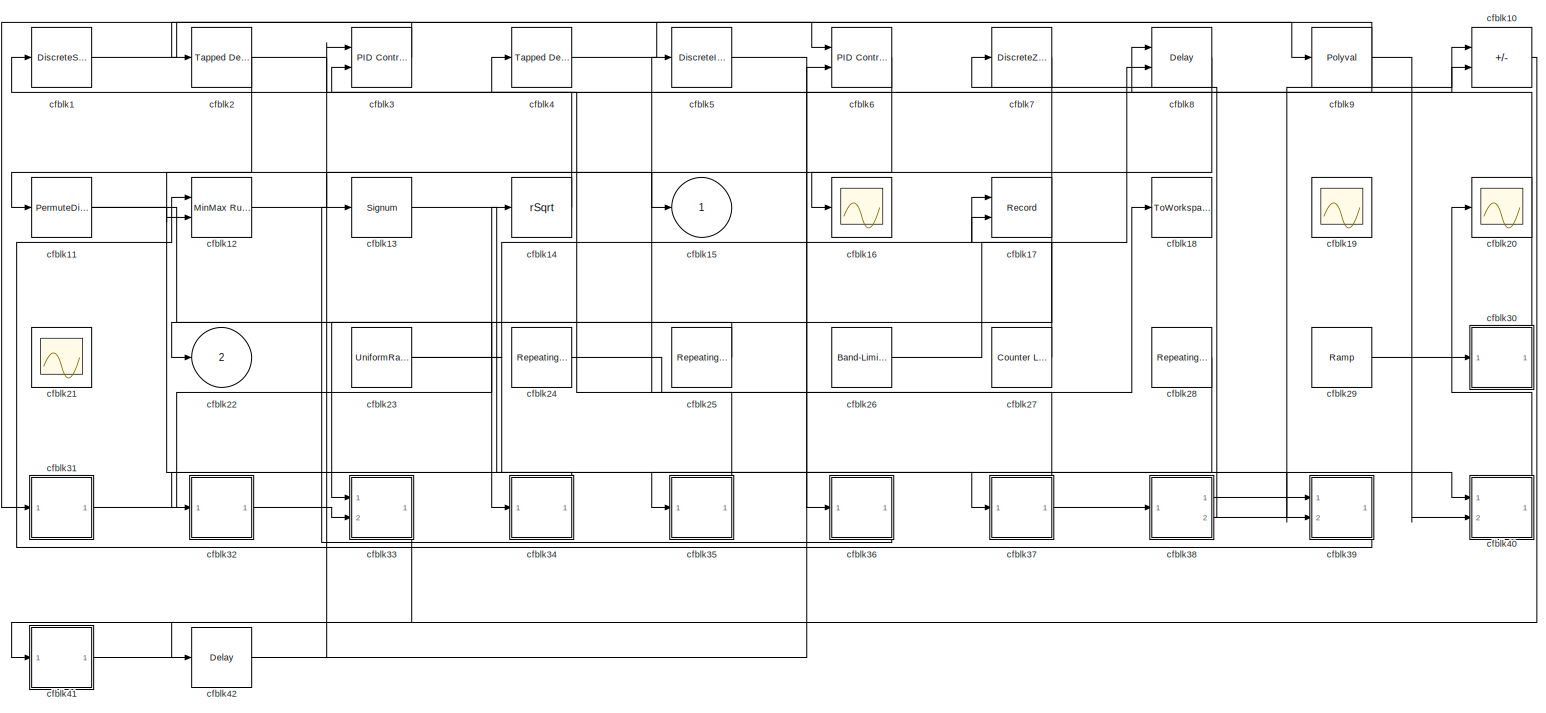
[diagram: root canvas - part 1/1, most of the canvas]
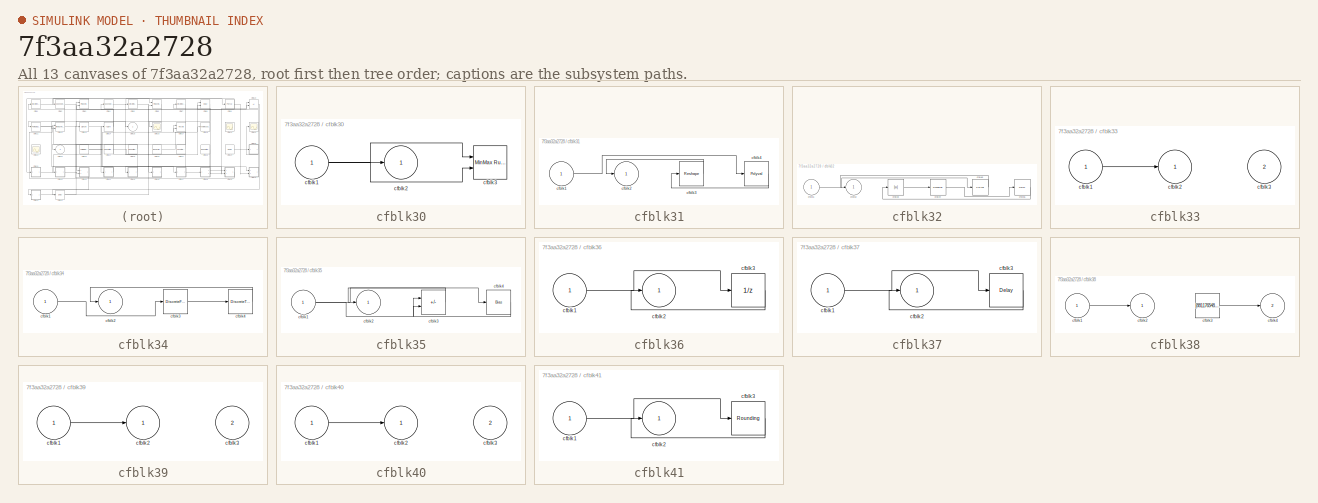
[diagram: thumbnail index - all 13 canvases of the model, root first then tree order]
MODEL slx_7f3aa32a2728
KIND model
CONFIG AbsTol = auto
CONFIG EnableMultiTasking = off
CONFIG FixedStep = auto
CONFIG MaxStep = auto
CONFIG MinStep = auto
CONFIG RelTol = 1e-3
CONFIG SampleTimeConstraint = Unconstrained
CONFIG SolverName = VariableStepAuto
CONFIG StartTime = 0.0
CONFIG StopTime = 10.0
BLOCK [DiscreteStateSpace] cfblk1
BLOCK [Sum] cfblk10
  IconShape = rectangular
  Inputs = +-
  Ports = [2, 1]
BLOCK [PermuteDimensions] cfblk11
BLOCK [Reference] cfblk12  REF=simulink/Math
Operations/MinMax
Running
Resettable
  Ports = [2, 1]
  SourceBlock = simulink/Math\nOperations/MinMax\nRunning\nResettable
  SourceProductBaseCode = SL
  SourceType = MinMax Running Resettable
BLOCK [Signum] cfblk13
BLOCK [Sqrt] cfblk14
  AlgorithmType = Newton-Raphson
  Operator = rSqrt
BLOCK [Outport] cfblk15
BLOCK [Scope] cfblk16
  Floating = off
  NumInputPorts = 1
  Ports = [1]
BLOCK [Record] cfblk17
  CompatibilityTag = XY
  FileSettingsInternal = {"entries":[{"content":{"excelSettings":{"content":{},"type":"Streamout.ExcelSettings"}},"type":"Streamout.FileSettingStorage","uuid":"6c478cfb-f08e-41cb-a2e0-bee08701c334"}],"packageUris":["http://schema.mathworks.com/mf0/streamout_blocks/R2020a"],"version":"1.0"}
  Layout = [1 1]
  Ports = [2]
  SignalsInternal = {"entries":[{"content":{"signals":[{"content":{"blockPath":["sampleModel129/cfblk17"],"channel":[],"dimensions":[1],"domain":"sampleModel129/cfblk17","lineColor":"#a2142f","plots":[1],"port":1,"sid":[""],"signalID":4517,"signalName":"cfblk27"},"type":"RecordBlkView.Signal","uuid":"d0227166-e5b9-4346-82fd-59314eee75df"},{"content":{"blockPath":["sampleModel129/cfblk17"],"channel":[],"dimensions":[1...<+383ch>
  VisualizationBindings = {"xyplotplugin":{"info":[{"series":[{"bindingParametersList":[{"parameter":"X-Axis","signalID":4517,"signalName":"cfblk27"},{"parameter":"Y-Axis","signalID":4521,"signalName":"cfblk23"}],"seriesID":1265}],"subplotID":1}]}}
BLOCK [ToWorkspace] cfblk18
  FixptAsFi = on
  MaxDataPoints = inf
  Ports = [1]
  SampleTime = -1
  SaveFormat = Timeseries
  VariableName = ebqmpxw
BLOCK [Scope] cfblk19
  Floating = on
  NumInputPorts = 1
  Ports = []
BLOCK [Reference] cfblk2  REF=simulink/Discrete/Tapped Delay
  Ports = [1, 1]
  SourceBlock = simulink/Discrete/Tapped Delay
  SourceProductBaseCode = SL
  SourceType = Tapped Delay Line
BLOCK [Scope] cfblk20
  Floating = off
  NumInputPorts = 1
  Ports = [1]
BLOCK [Scope] cfblk21
  Floating = on
  NumInputPorts = 1
  Ports = []
BLOCK [Outport] cfblk22
  Port = 2
BLOCK [UniformRandomNumber] cfblk23
  Maximum = [4014070307.860305]
  Minimum = [-751023809.091208]
  SampleTime = 0.1
  Seed = [9808600.000000]
BLOCK [Reference] cfblk24  REF=simulink/Sources/Repeating
Sequence
Interpolated
  Ports = [0, 1]
  SourceBlock = simulink/Sources/Repeating\nSequence\nInterpolated
  SourceProductBaseCode = SL
  SourceType = Repeating Sequence Interpolated
BLOCK [Reference] cfblk25  REF=simulink/Sources/Repeating
Sequence
Interpolated
  Ports = [0, 1]
  SourceBlock = simulink/Sources/Repeating\nSequence\nInterpolated
  SourceProductBaseCode = SL
  SourceType = Repeating Sequence Interpolated
BLOCK [Reference] cfblk26  REF=simulink/Sources/Band-Limited
White Noise
  Ports = [0, 1]
  SourceBlock = simulink/Sources/Band-Limited\nWhite Noise
  SourceProductBaseCode = SL
  SourceType = Band-Limited White Noise.
BLOCK [Reference] cfblk27  REF=simulink/Sources/Counter
Limited
  Ports = [0, 1]
  SourceBlock = simulink/Sources/Counter\nLimited
  SourceProductBaseCode = SL
  SourceType = Counter Limited
BLOCK [Reference] cfblk28  REF=simulink/Sources/Repeating
Sequence
Interpolated
  Ports = [0, 1]
  SourceBlock = simulink/Sources/Repeating\nSequence\nInterpolated
  SourceProductBaseCode = SL
  SourceType = Repeating Sequence Interpolated
BLOCK [Reference] cfblk29  REF=simulink/Sources/Ramp
  Ports = [0, 1]
  SourceBlock = simulink/Sources/Ramp
  SourceProductBaseCode = SL
  SourceType = Ramp
BLOCK [Reference] cfblk3  REF=slpidlib/PID Controller (2DOF)
  Ports = [2, 1]
  SourceBlock = slpidlib/PID Controller (2DOF)
  SourceProductBaseCode = SL
  SourceType = PID 2dof
BLOCK [SubSystem] cfblk30
  Ports = [1, 1]
  RequestExecContextInheritance = off
BLOCK [Inport] cfblk30/cfblk1
BLOCK [Outport] cfblk30/cfblk2
BLOCK [Reference] cfblk30/cfblk3  REF=simulink/Math
Operations/MinMax
Running
Resettable
  Ports = [2, 1]
  SourceBlock = simulink/Math\nOperations/MinMax\nRunning\nResettable
  SourceProductBaseCode = SL
  SourceType = MinMax Running Resettable
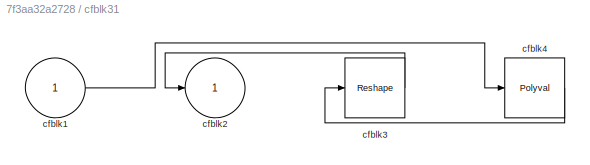
BLOCK [SubSystem] cfblk31
  Ports = [1, 1]
  RequestExecContextInheritance = off
BLOCK [Inport] cfblk31/cfblk1
BLOCK [Outport] cfblk31/cfblk2
BLOCK [Reshape] cfblk31/cfblk3
  Ports = [1, 1]
BLOCK [Polyval] cfblk31/cfblk4
  Coefs = [ +2.081618890e-019, -1.441693666e-014, +4.719686976e-010, -8.536869453e-006, +1.621573104e-001, -8.087801117e+001 ]
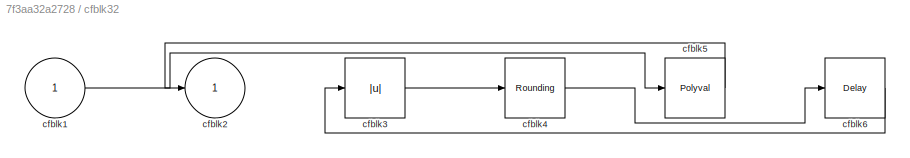
BLOCK [SubSystem] cfblk32
  Ports = [1, 1]
  RequestExecContextInheritance = off
BLOCK [Inport] cfblk32/cfblk1
BLOCK [Outport] cfblk32/cfblk2
BLOCK [Abs] cfblk32/cfblk3
  SaturateOnIntegerOverflow = off
BLOCK [Rounding] cfblk32/cfblk4
BLOCK [Polyval] cfblk32/cfblk5
  Coefs = [ +2.081618890e-019, -1.441693666e-014, +4.719686976e-010, -8.536869453e-006, +1.621573104e-001, -8.087801117e+001 ]
BLOCK [Delay] cfblk32/cfblk6
  InputPortMap = u0
  Ports = [1, 1]
  SampleTime = 1
BLOCK [SubSystem] cfblk33
  Ports = [2, 1]
  RequestExecContextInheritance = off
BLOCK [Inport] cfblk33/cfblk1
BLOCK [Outport] cfblk33/cfblk2
BLOCK [Inport] cfblk33/cfblk3
  Port = 2
BLOCK [SubSystem] cfblk34
  Ports = [1, 1]
  RequestExecContextInheritance = off
BLOCK [Inport] cfblk34/cfblk1
BLOCK [Outport] cfblk34/cfblk2
BLOCK [DiscreteFilter] cfblk34/cfblk3
  InputPortMap = u0
  Ports = [1, 1]
  SampleTime = 1
BLOCK [DiscreteTransferFcn] cfblk34/cfblk4
  InputPortMap = u0
  Ports = [1, 1]
  SampleTime = 1
BLOCK [SubSystem] cfblk35
  Ports = [1, 1]
  RequestExecContextInheritance = off
BLOCK [Inport] cfblk35/cfblk1
BLOCK [Outport] cfblk35/cfblk2
BLOCK [Sum] cfblk35/cfblk3
  IconShape = rectangular
  Inputs = +-
  Ports = [2, 1]
BLOCK [Bias] cfblk35/cfblk4
  Bias = [616990599.624124]
  SaturateOnIntegerOverflow = off
BLOCK [SubSystem] cfblk36
  Ports = [1, 1]
  RequestExecContextInheritance = off
BLOCK [Inport] cfblk36/cfblk1
BLOCK [Outport] cfblk36/cfblk2
BLOCK [UnitDelay] cfblk36/cfblk3
  HasFrameUpgradeWarning = on
BLOCK [SubSystem] cfblk37
  Ports = [1, 1]
  RequestExecContextInheritance = off
BLOCK [Inport] cfblk37/cfblk1
BLOCK [Outport] cfblk37/cfblk2
BLOCK [Delay] cfblk37/cfblk3
  InputPortMap = u0
  Ports = [1, 1]
  SampleTime = 1
BLOCK [SubSystem] cfblk38
  Ports = [1, 2]
  RequestExecContextInheritance = off
BLOCK [Inport] cfblk38/cfblk1
BLOCK [Outport] cfblk38/cfblk2
BLOCK [Constant] cfblk38/cfblk3
  SampleTime = 1
  Value = [881176548.767692]
BLOCK [Outport] cfblk38/cfblk4
  Port = 2
BLOCK [SubSystem] cfblk39
  Ports = [2, 1]
  RequestExecContextInheritance = off
BLOCK [Inport] cfblk39/cfblk1
BLOCK [Outport] cfblk39/cfblk2
BLOCK [Inport] cfblk39/cfblk3
  Port = 2
BLOCK [Reference] cfblk4  REF=simulink/Discrete/Tapped Delay
  Ports = [1, 1]
  SourceBlock = simulink/Discrete/Tapped Delay
  SourceProductBaseCode = SL
  SourceType = Tapped Delay Line
BLOCK [SubSystem] cfblk40
  Ports = [2, 1]
  RequestExecContextInheritance = off
BLOCK [Inport] cfblk40/cfblk1
BLOCK [Outport] cfblk40/cfblk2
BLOCK [Inport] cfblk40/cfblk3
  Port = 2
BLOCK [SubSystem] cfblk41
  Ports = [1, 1]
  RequestExecContextInheritance = off
BLOCK [Inport] cfblk41/cfblk1
BLOCK [Outport] cfblk41/cfblk2
BLOCK [Rounding] cfblk41/cfblk3
BLOCK [Delay] cfblk42
  InputPortMap = u0
  Ports = [1, 1]
  SampleTime = 1
BLOCK [DiscreteIntegrator] cfblk5
  ICPrevOutput = DiscIntNeverNeededParam
  ICPrevScaledInput = DiscIntNeverNeededParam
  InitialConditionSetting = Auto
  Ports = [1, 1]
BLOCK [Reference] cfblk6  REF=slpidlib/PID Controller (2DOF)
  Ports = [2, 1]
  SourceBlock = slpidlib/PID Controller (2DOF)
  SourceProductBaseCode = SL
  SourceType = PID 2dof
BLOCK [DiscreteZeroPole] cfblk7
  Gain = 1
  Poles = [0 0.5]
BLOCK [Delay] cfblk8
  DelayLengthSource = Input port
  InputPortMap = u0,p1
  Ports = [2, 1]
  SampleTime = 1
BLOCK [Polyval] cfblk9
  Coefs = [ +2.081618890e-019, -1.441693666e-014, +4.719686976e-010, -8.536869453e-006, +1.621573104e-001, -8.087801117e+001 ]
LINE cfblk10:1 -> cfblk41:1
NET cfblk11:1 -> cfblk34:1, cfblk40:1
LINE cfblk12:1 -> cfblk15:1
LINE cfblk13:1 -> cfblk37:1
LINE cfblk14:1 -> cfblk1:1
LINE cfblk1:1 -> cfblk6:1
NET cfblk23:1 -> cfblk17:2, cfblk39:2
LINE cfblk24:1 -> cfblk18:1
LINE cfblk25:1 -> cfblk22:1
LINE cfblk26:1 -> cfblk8:2
LINE cfblk27:1 -> cfblk17:1
LINE cfblk28:1 -> cfblk35:1
LINE cfblk29:1 -> cfblk30:1
NET cfblk2:1 -> cfblk10:2, cfblk12:2
NET cfblk30/cfblk1:1 -> cfblk30/cfblk2:1, cfblk30/cfblk3:1, cfblk30/cfblk3:2
LINE cfblk30:1 -> cfblk8:1
LINE cfblk31/cfblk1:1 -> cfblk31/cfblk4:1
LINE cfblk31/cfblk3:1 -> cfblk31/cfblk2:1
LINE cfblk31/cfblk4:1 -> cfblk31/cfblk3:1
LINE cfblk31:1 -> cfblk14:1
LINE cfblk32/cfblk1:1 -> cfblk32/cfblk5:1
LINE cfblk32/cfblk3:1 -> cfblk32/cfblk4:1
LINE cfblk32/cfblk4:1 -> cfblk32/cfblk6:1
LINE cfblk32/cfblk5:1 -> cfblk32/cfblk2:1
LINE cfblk32/cfblk6:1 -> cfblk32/cfblk3:1
LINE cfblk32:1 -> cfblk33:2
LINE cfblk33/cfblk1:1 -> cfblk33/cfblk2:1
LINE cfblk33:1 -> cfblk42:1
LINE cfblk34/cfblk1:1 -> cfblk34/cfblk3:1
LINE cfblk34/cfblk3:1 -> cfblk34/cfblk4:1
LINE cfblk34/cfblk4:1 -> cfblk34/cfblk2:1
LINE cfblk34:1 -> cfblk32:1
NET cfblk35/cfblk1:1 -> cfblk35/cfblk3:2, cfblk35/cfblk4:1
LINE cfblk35/cfblk3:1 -> cfblk35/cfblk2:1
LINE cfblk35/cfblk4:1 -> cfblk35/cfblk3:1
LINE cfblk35:1 -> cfblk5:1
LINE cfblk36/cfblk1:1 -> cfblk36/cfblk3:1
LINE cfblk36/cfblk3:1 -> cfblk36/cfblk2:1
LINE cfblk36:1 -> cfblk13:1
LINE cfblk37/cfblk1:1 -> cfblk37/cfblk3:1
LINE cfblk37/cfblk3:1 -> cfblk37/cfblk2:1
NET cfblk37:1 -> cfblk38:1, cfblk4:1
LINE cfblk38/cfblk1:1 -> cfblk38/cfblk2:1
LINE cfblk38/cfblk3:1 -> cfblk38/cfblk4:1
LINE cfblk38:1 -> cfblk39:1
NET cfblk38:2 -> cfblk10:1, cfblk7:1
LINE cfblk39/cfblk1:1 -> cfblk39/cfblk2:1
LINE cfblk39:1 -> cfblk12:1
LINE cfblk3:1 -> cfblk31:1
LINE cfblk40/cfblk1:1 -> cfblk40/cfblk2:1
LINE cfblk40:1 -> cfblk20:1
LINE cfblk41/cfblk1:1 -> cfblk41/cfblk3:1
LINE cfblk41/cfblk3:1 -> cfblk41/cfblk2:1
LINE cfblk41:1 -> cfblk3:1
LINE cfblk42:1 -> cfblk6:2
LINE cfblk4:1 -> cfblk9:1
LINE cfblk5:1 -> cfblk36:1
LINE cfblk6:1 -> cfblk11:1
LINE cfblk7:1 -> cfblk33:1
LINE cfblk8:1 -> cfblk16:1
NET cfblk9:1 -> cfblk2:1, cfblk3:2, cfblk40:2
note: NET lines group one-source signal fan-out (src -> all destinations, sorted); 1:1 wires keep LINE
